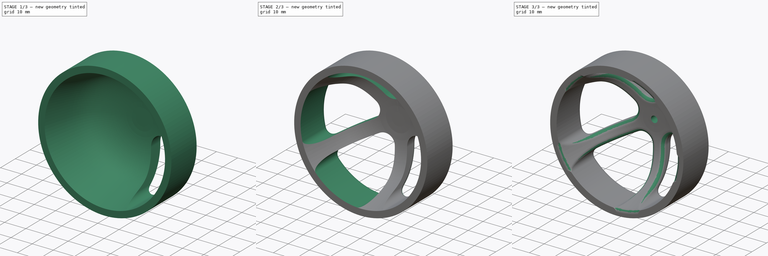
[diagram: build sequence overview — one tinted view per stage of 3, left to right]
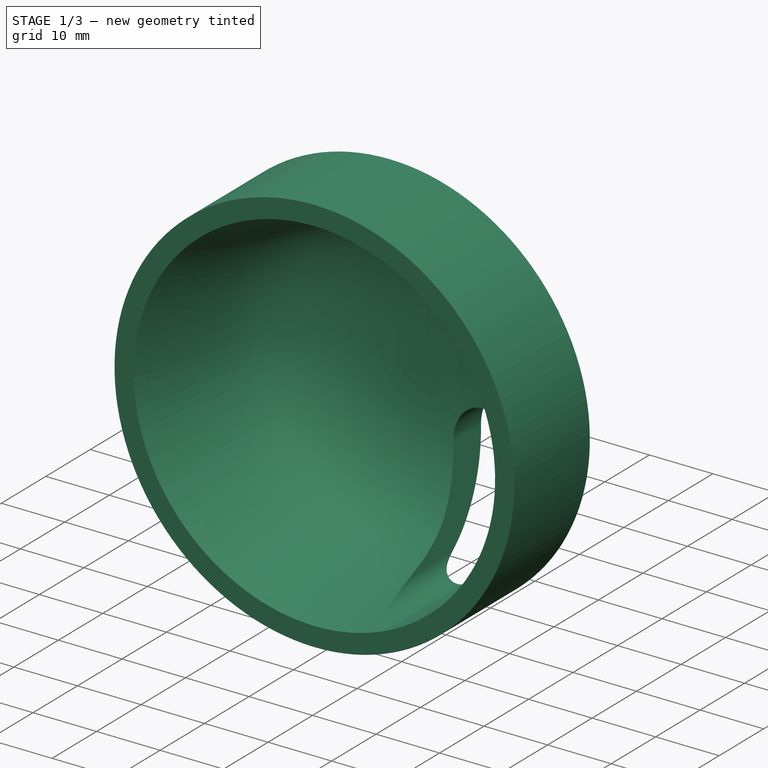
[diagram: stage 1 of 3 — iso view after this stage's code; geometry added in this stage tinted green]
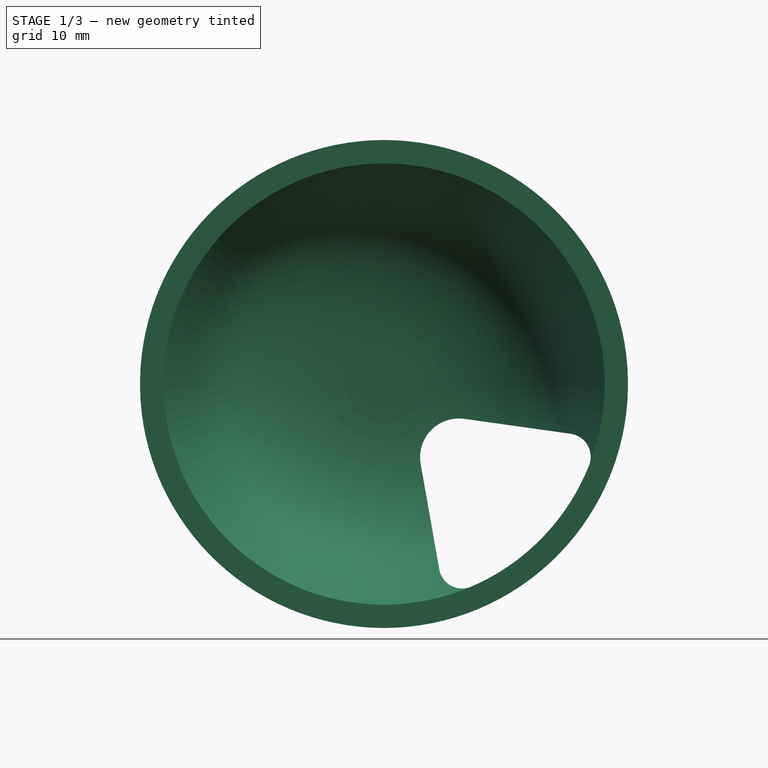
[diagram: stage 1 of 3 — front view after this stage's code; geometry added in this stage tinted green]
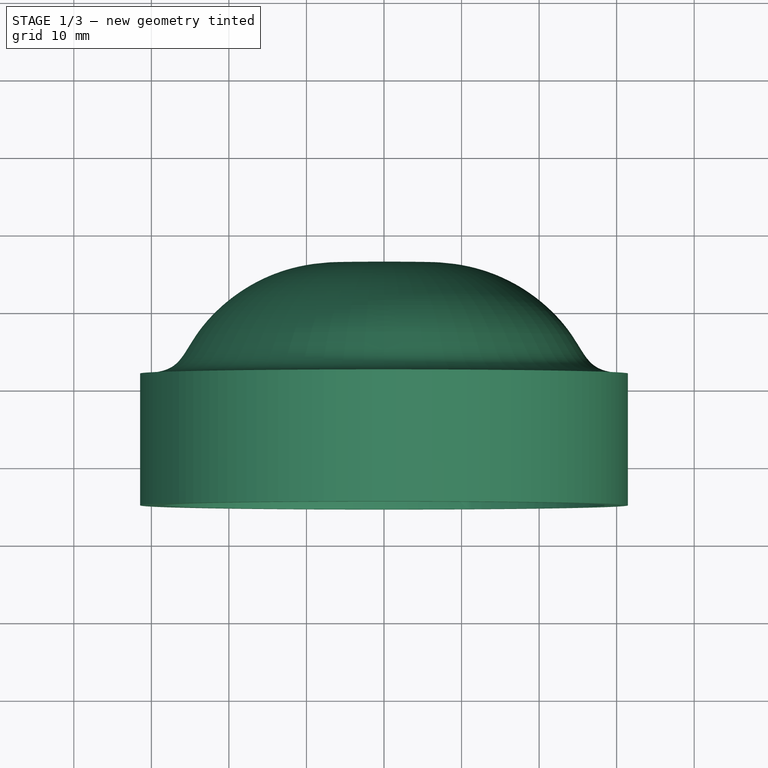
[diagram: stage 1 of 3 — top view after this stage's code; geometry added in this stage tinted green]
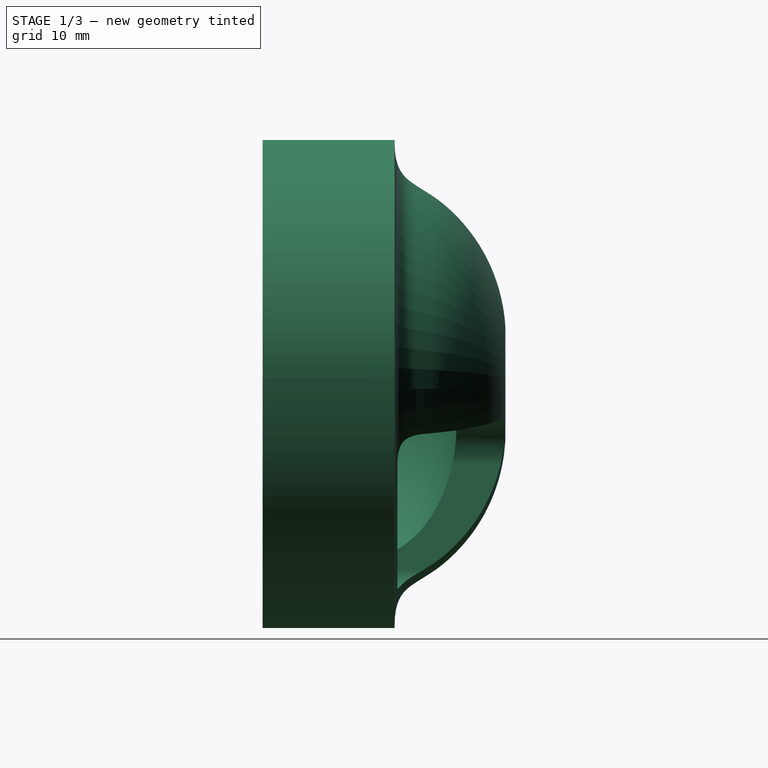
[diagram: stage 1 of 3 — right view after this stage's code; geometry added in this stage tinted green]
FCSTD DOCUMENT  (FreeCAD 0.18R16110 (Git))
Label: Acoplador_Volante
License: All rights reserved
LicenseURL: http://en.wikipedia.org/wiki/All_rights_reserved
objects: Sketcher::SketchObject×3, PartDesign::Pocket×2, PartDesign::Fillet×2, PartDesign::Revolution×1, PartDesign::PolarPattern×1, PartDesign::Body×1
note: 13 computed .brp shape members not serialized (recipe doc carries the construction recipe); baked Part::Feature solids carry a one-line shape summary decoded from their .brp

FEATURE [Sketcher::SketchObject] Sketch122
  MapMode = 5
  Placement = pos=(0,0,0) rot=(0.57735,0.57735,0.57735;2.0944rad)
  Support = -> [YZ_Plane030]
  sketch-geometry (24):
    g0: LineSegment StartX=-8.30251 StartY=31.46 StartZ=0 EndX=-25.3025 EndY=31.46 EndZ=0
    g1: LineSegment StartX=-25.3025 StartY=31.46 StartZ=0 EndX=-25.3025 EndY=28.45 EndZ=0
    g2-g6: Circle [constr] x5 (B-spline internal-alignment scaffolding for g7; pole/knot coordinates omitted)
    g7: BSplineCurve PolesCount=5 KnotsCount=3 Degree=3 IsPeriodic=0
    g8: GeomPoint [constr] X=-25.3025 Y=28.45 Z=0
    g9: GeomPoint [constr] X=-5.54221 Y=20.5032 Z=0
    g10: GeomPoint [constr] X=0 Y=3 Z=0
    g11-g15: Circle [constr] x5 (B-spline internal-alignment scaffolding for g16; pole/knot coordinates omitted)
    g16: BSplineCurve PolesCount=5 KnotsCount=3 Degree=3 IsPeriodic=0
    g17: GeomPoint [constr] X=-8.30251 Y=31.46 Z=0
    g18: GeomPoint [constr] X=-2.61369 Y=23.7007 Z=0
    g19: GeomPoint [constr] X=6 Y=7.35 Z=0
    g20: LineSegment [constr] StartX=-8.30251 StartY=31.46 StartZ=0 EndX=-8.30251 EndY=26.0691 EndZ=0
    g21: LineSegment StartX=6 StartY=7.35 StartZ=0 EndX=6 EndY=0 EndZ=0
    g22: LineSegment StartX=0 StartY=3 StartZ=0 EndX=0 EndY=0 EndZ=0
    g23: LineSegment StartX=0 StartY=0 StartZ=0 EndX=6 EndY=0 EndZ=0
  constraints (34):
    c: Coincident(g0,g1)
    c: Radius(g2) = 2
    c: Equal(g2, g3-g6) x4
    c: InternalAlignment(g2-g6 -> g7) x5
    c: InternalAlignment(g8,g7)
    c: InternalAlignment(g9,g7)
    c: InternalAlignment(g10,g7)
    c: Radius(g11) = 0.9
    c: Equal(g11, g12-g15) x4
    c: InternalAlignment(g11-g15 -> g16) x5
    c: InternalAlignment(g17,g16)
    c: InternalAlignment(g18,g16)
    c: InternalAlignment(g19,g16)
    c: Horizontal(g0)
    c: Vertical(g1)
    c: DistanceX(g0,g0) = 17
    c: Coincident(g0,g16)
    c: Coincident(g7,g1)
    c: DistanceX(g7,g21) = 6
    c: Vertical(g20)
    c: Coincident(g20,g12)
    c: Coincident(g20,g0)
    c: DistanceY(g-1,g0) = 31.46
    c: DistanceY(g-1,g1) = 28.45
    c: Vertical(g21)
    c: DistanceY(g21,g21) = 7.35
    c: Coincident(g16,g21)
    c: Vertical(g22)
    c: Coincident(g22,g7)
    c: Coincident(g22,g-1)
    c: Coincident(g23,g22)
    c: Coincident(g23,g21)
    c: DistanceY(g22,g22) = 3
    c: Horizontal(g23)
FEATURE [PartDesign::Revolution] Revolution002
  Angle = 360
  Axis = (3e-16,1,-2e-16)
  Base = (0,0,0)
  Placement = pos=(0,0,0) rot=(0.57735,0.57735,0.57735;2.0944rad)
  Profile = -> Sketch122
  ReferenceAxis = -> Sketch122 [H_Axis]
FEATURE [Sketcher::SketchObject] Sketch123
  ExternalGeometry = -> [Revolution002]
  MapMode = 5
  Placement = pos=(-8.3e-15,-25.3025,1.11e-14) rot=(0.57735,0.57735,-0.57735;2.0944rad)
  Support = -> [Revolution002]
  sketch-geometry (11):
    g0: LineSegment [constr] StartX=27.3771 StartY=7.73944 StartZ=0 EndX=3.53553 EndY=3.53553 EndZ=0
    g1: Circle [constr] CenterX=0 CenterY=0 CenterZ=0 NormalX=0 NormalY=0 NormalZ=1 AngleXU=0 Radius=5
    g2: ArcOfCircle [constr] CenterX=0 CenterY=0 CenterZ=0 NormalX=0 NormalY=0 NormalZ=1 AngleXU=0 Radius=28.45 StartAngle=0.275509 EndAngle=1.3252
    g3: LineSegment [constr] StartX=3.53553 StartY=3.53553 StartZ=0 EndX=6.91706 EndY=27.5963 EndZ=0
    g4: LineSegment [constr] StartX=0 StartY=0 StartZ=0 EndX=3.53553 EndY=3.53553 EndZ=0
    g5: ArcOfCircle CenterX=9.44465 CenterY=9.6546 CenterZ=0 NormalX=0 NormalY=0 NormalZ=1 AngleXU=0 Radius=5 StartAngle=3.00197 EndAngle=4.88692
    g6: ArcOfCircle CenterX=9.3924 CenterY=23.6534 CenterZ=0 NormalX=0 NormalY=0 NormalZ=1 AngleXU=0 Radius=3 StartAngle=1.19281 EndAngle=3.00197
    g7: ArcOfCircle CenterX=23.3691 CenterY=10.079 CenterZ=0 NormalX=0 NormalY=0 NormalZ=1 AngleXU=0 Radius=3 StartAngle=4.88692 EndAngle=6.69038
    g8: LineSegment StartX=10.3129 StartY=4.73056 StartZ=0 EndX=23.8901 EndY=7.12459 EndZ=0
    g9: LineSegment StartX=4.49331 StartY=10.3505 StartZ=0 EndX=6.4216 EndY=24.071 EndZ=0
    g10: ArcOfCircle CenterX=0 CenterY=0 CenterZ=0 NormalX=0 NormalY=0 NormalZ=1 AngleXU=0 Radius=28.45 StartAngle=0.407192 EndAngle=1.19281
  constraints (36):
    c: PointOnObject(g0,g1)
    c: Coincident(g2,g3)
    c: Coincident(g3,g0)
    c: Radius(g1) = 5
    c: Angle(g0,g3) = 1.25664
    c: Coincident(g2,g-1)
    c: Coincident(g1,g2)
    c: Coincident(g4,g0)
    c: Angle(g-1,g4) = 0.785398
    c: Tangent(g5,g0)
    c: Tangent(g5,g3)
    c: Radius(g5) = 5
    c: Tangent(g6,g2)
    c: Tangent(g6,g3)
    c: Radius(g6) = 3
    c: Radius(g7) = 3
    c: Tangent(g7,g0)
    c: Tangent(g7,g2)
    c: Tangent(g9,g6)
    c: Tangent(g9,g5)
    c: Tangent(g8,g5)
    c: Tangent(g8,g7)
    c: Tangent(g10,g7)
    c: Coincident(g10,g-1)
    c: Coincident(g2,g0)
    c: Coincident(g4,g10)
    c: PointOnObject(g8,g5)
    c: Angle(g4,g0) = 2.53073
    c: Coincident(g6,g10)
    c: Coincident(g6,g9)
    c: Coincident(g5,g9)
    c: Coincident(g5,g0)
    c: Coincident(g7,g8)
    c: Coincident(g7,g10)
    c: PointOnObject(g5,g8)
    c: PointOnObject(g6,g-3)
FEATURE [PartDesign::Pocket] Pocket064
  BaseFeature = -> Revolution002
  Length = 5
  Length2 = 100
  Placement = pos=(0,0,0) rot=(0.57735,0.57735,0.57735;2.0944rad)
  Profile = -> Sketch123
  Type = 1
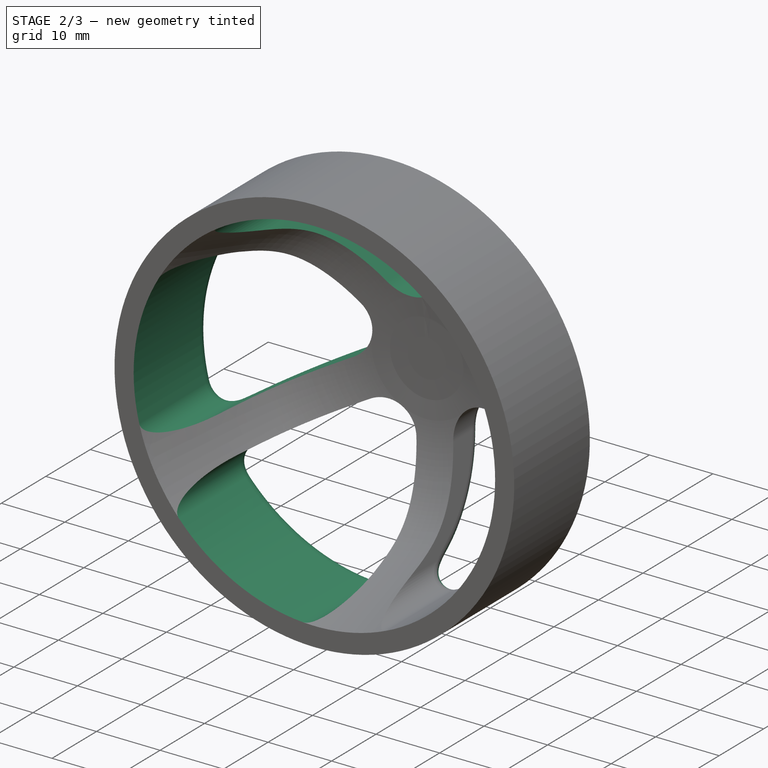
[diagram: stage 2 of 3 — iso view after this stage's code; geometry added in this stage tinted green]
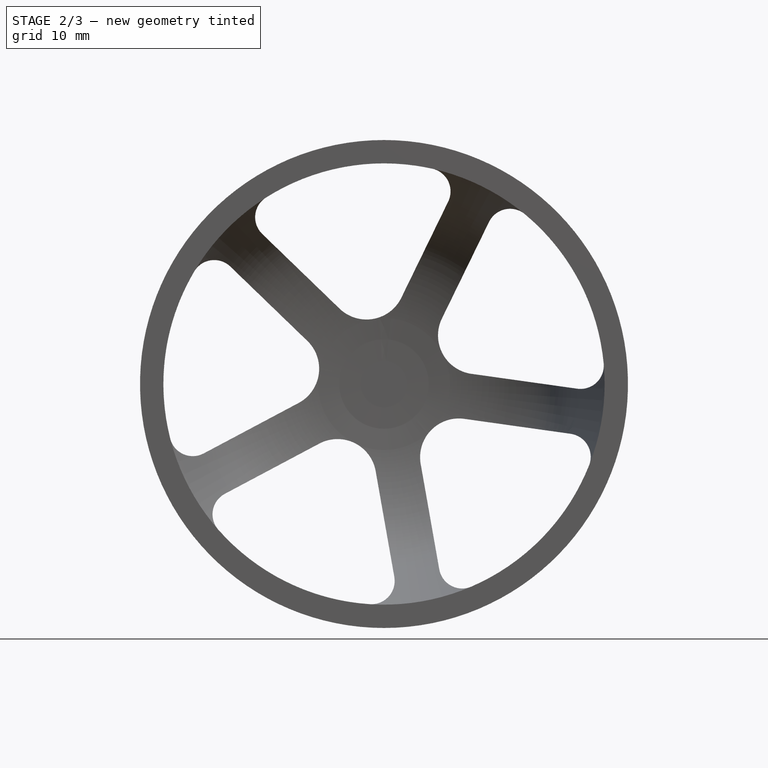
[diagram: stage 2 of 3 — front view after this stage's code; geometry added in this stage tinted green]
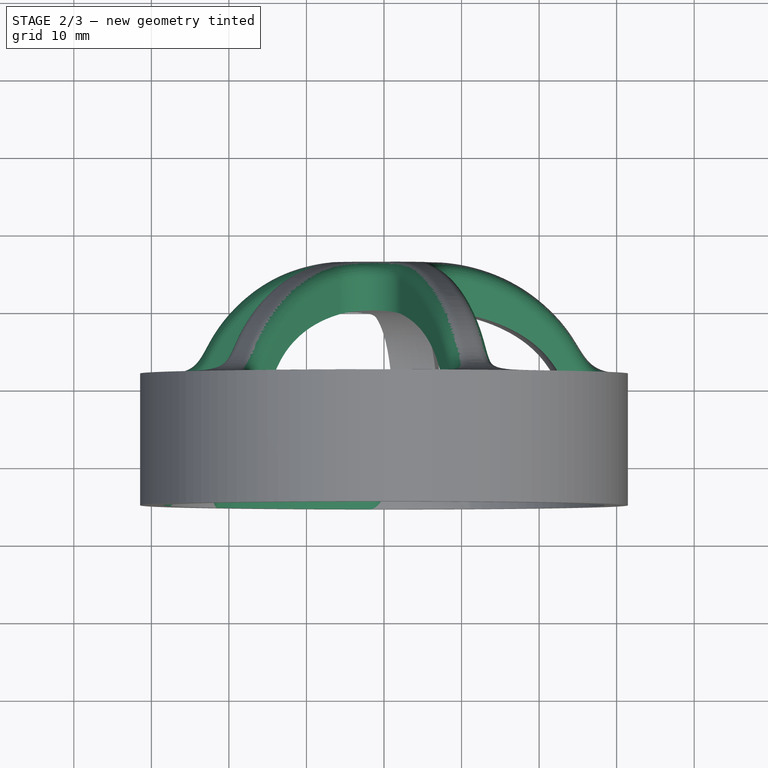
[diagram: stage 2 of 3 — top view after this stage's code; geometry added in this stage tinted green]
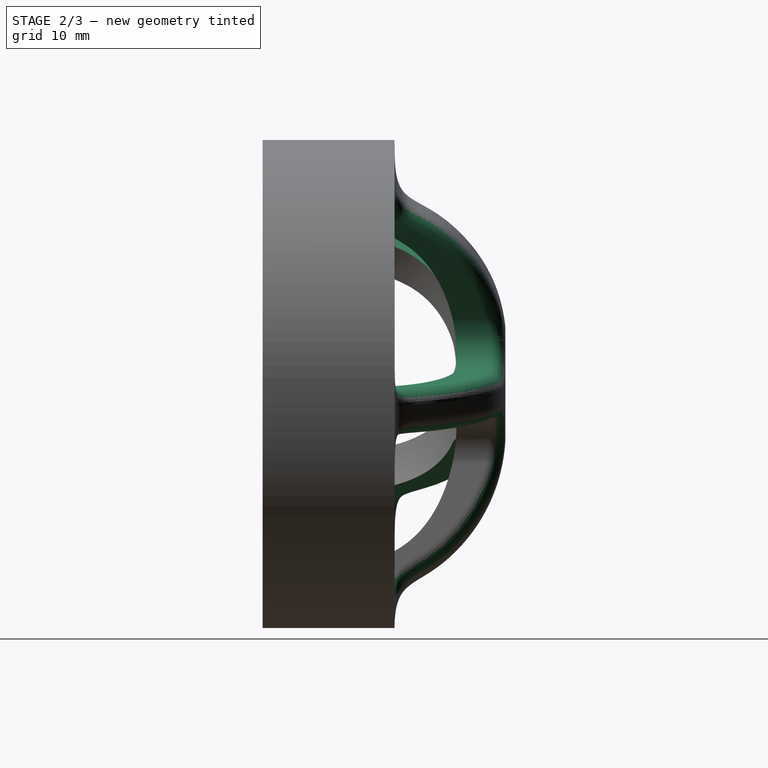
[diagram: stage 2 of 3 — right view after this stage's code; geometry added in this stage tinted green]
FEATURE [PartDesign::PolarPattern] PolarPattern
  Angle = 360
  Axis = -> Sketch123 [N_Axis]
  BaseFeature = -> Pocket064
  Occurrences = 5
  Originals = -> [Pocket064]
  Placement = pos=(0,0,0) rot=(0.57735,0.57735,0.57735;2.0944rad)
FEATURE [PartDesign::Fillet] Fillet080
  Base = -> PolarPattern [Edge34,Edge41,Edge26,Edge22,Edge9]
  BaseFeature = -> PolarPattern
  Placement = pos=(0,0,0) rot=(0.57735,0.57735,0.57735;2.0944rad)
  Radius = 2
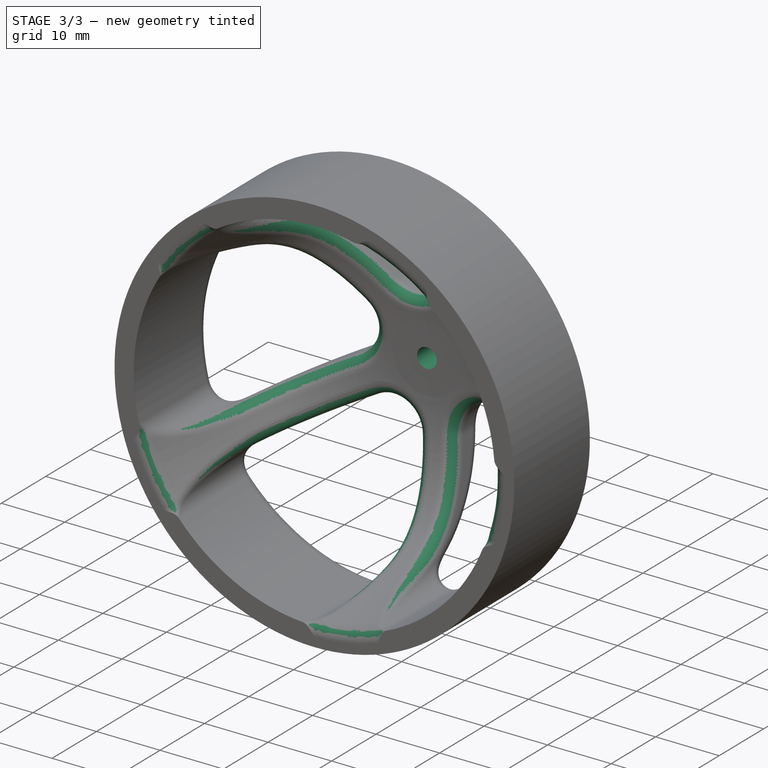
[diagram: stage 3 of 3 — iso view after this stage's code; geometry added in this stage tinted green]
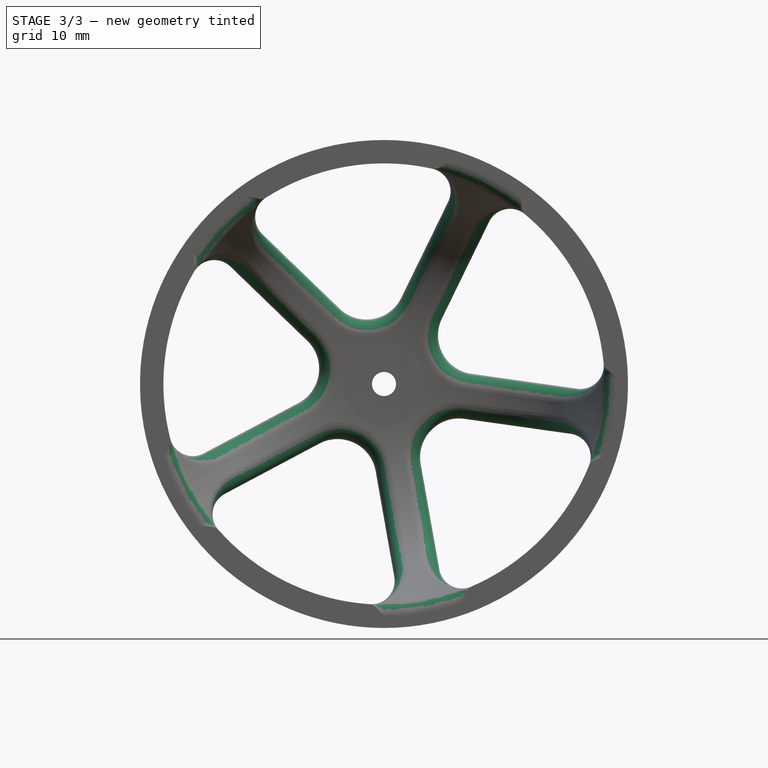
[diagram: stage 3 of 3 — front view after this stage's code; geometry added in this stage tinted green]
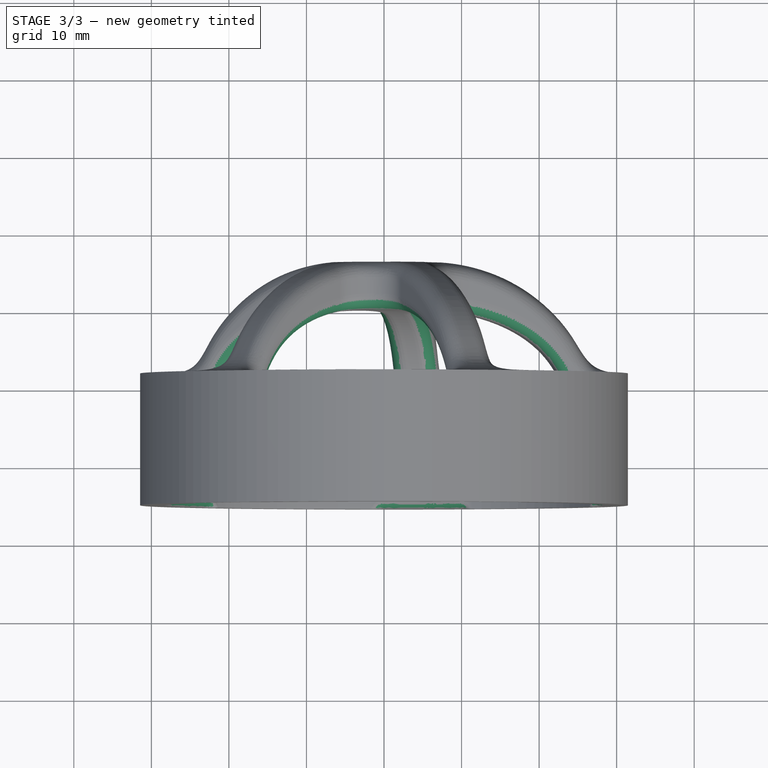
[diagram: stage 3 of 3 — top view after this stage's code; geometry added in this stage tinted green]
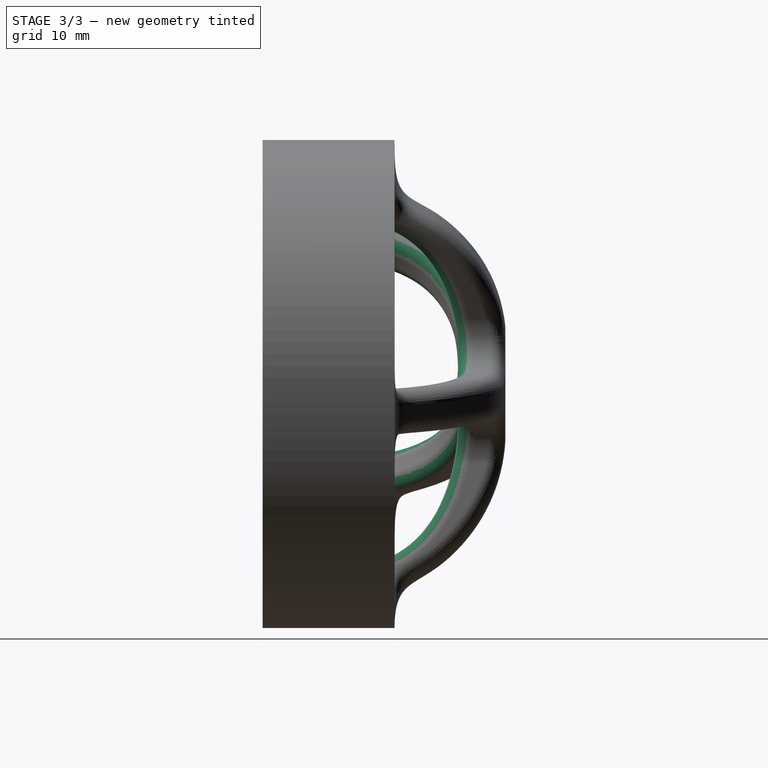
[diagram: stage 3 of 3 — right view after this stage's code; geometry added in this stage tinted green]
FEATURE [Sketcher::SketchObject] Sketch
  MapMode = 5
  Placement = pos=(2e-15,6,-5e-15) rot=(0.57735,0.57735,0.57735;4.18879rad)
  sketch-geometry (1):
    g0: Circle CenterX=0 CenterY=0 CenterZ=0 NormalX=0 NormalY=0 NormalZ=1 AngleXU=0 Radius=1.55
  constraints (2):
    c: Coincident(g0,g-1)
    c: Diameter(g0) = 3.1
FEATURE [PartDesign::Pocket] Pocket065
  BaseFeature = -> Fillet080
  Length = 5
  Length2 = 100
  Placement = pos=(0,0,0) rot=(0.57735,0.57735,0.57735;2.0944rad)
  Profile = -> Sketch
  Type = 1
FEATURE [PartDesign::Fillet] Fillet081
  Base = -> Pocket065 [Face77]
  BaseFeature = -> Pocket065
  Placement = pos=(0,0,0) rot=(0.57735,0.57735,0.57735;2.0944rad)
  Radius = 2
FEATURE [PartDesign::Body] Body029  label="Acoplador_Voltante_Motor"
  Group = -> [Sketch122,Revolution002,Sketch123,Pocket064,PolarPattern,Fillet080,Sketch,Pocket065,Fillet081]
  Origin = -> Origin029
  Tip = -> Fillet081
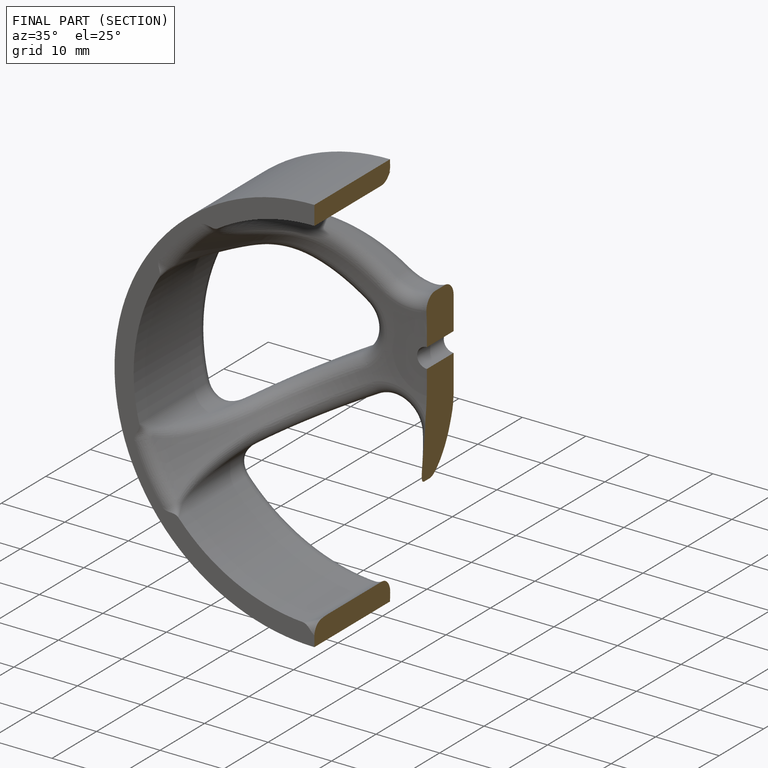
[diagram: finished part — half-section view (interior)]
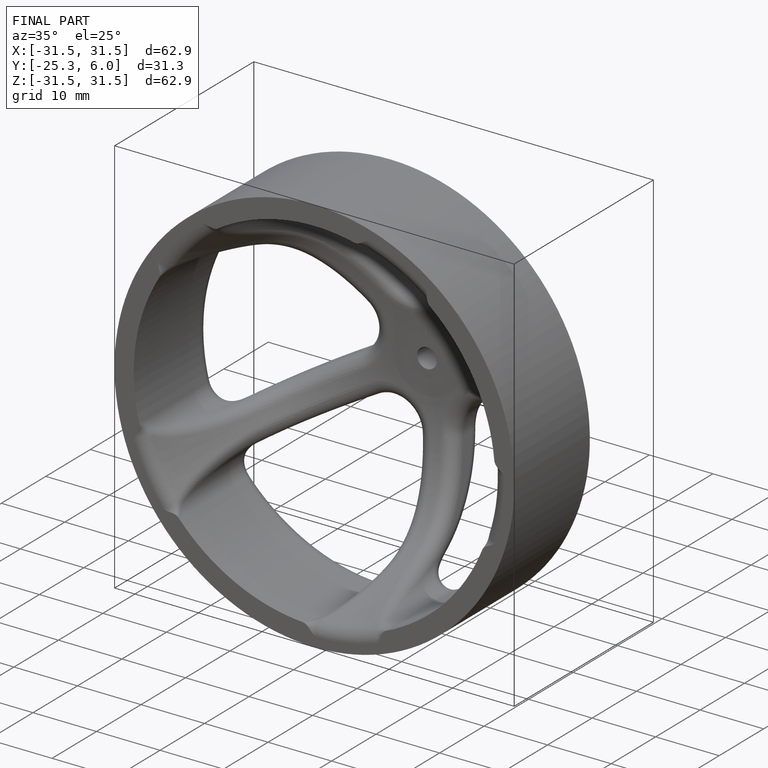
[diagram: finished part — iso view with bounding-box wireframe]
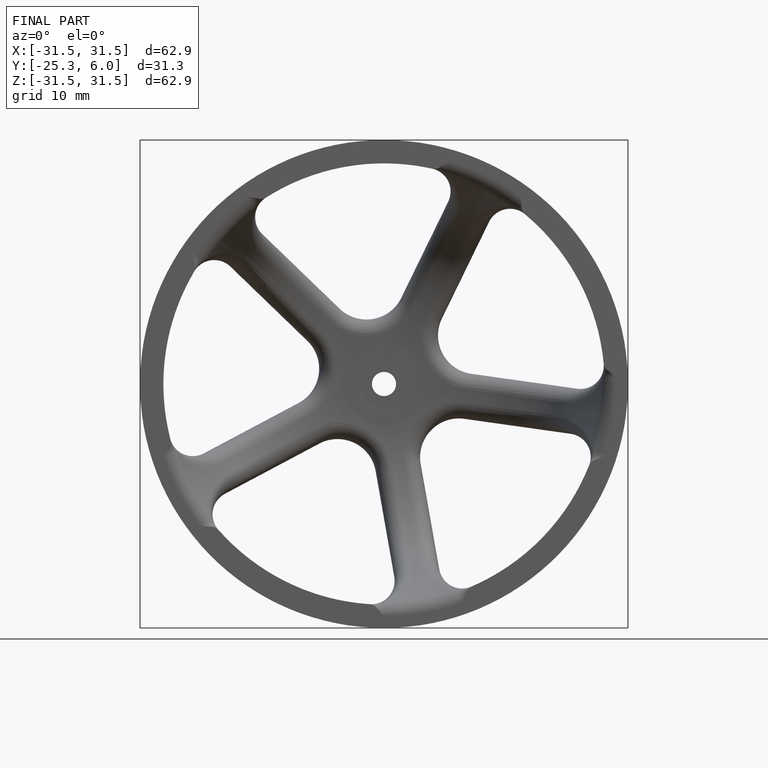
[diagram: finished part — front view with bounding-box wireframe]
